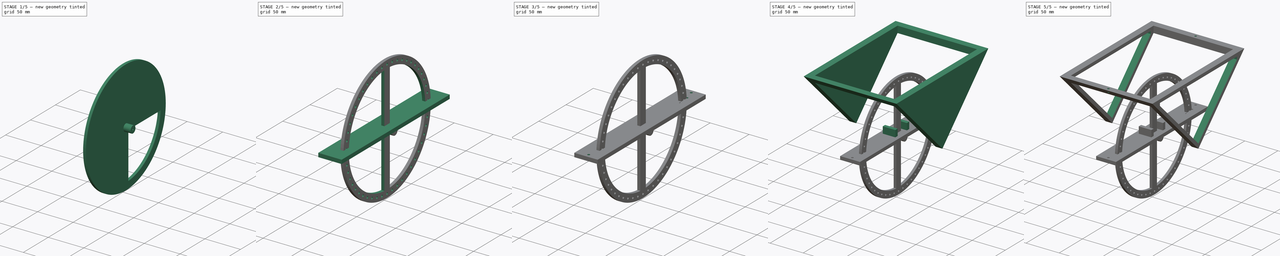
[diagram: build sequence overview — one tinted view per stage of 5, left to right]
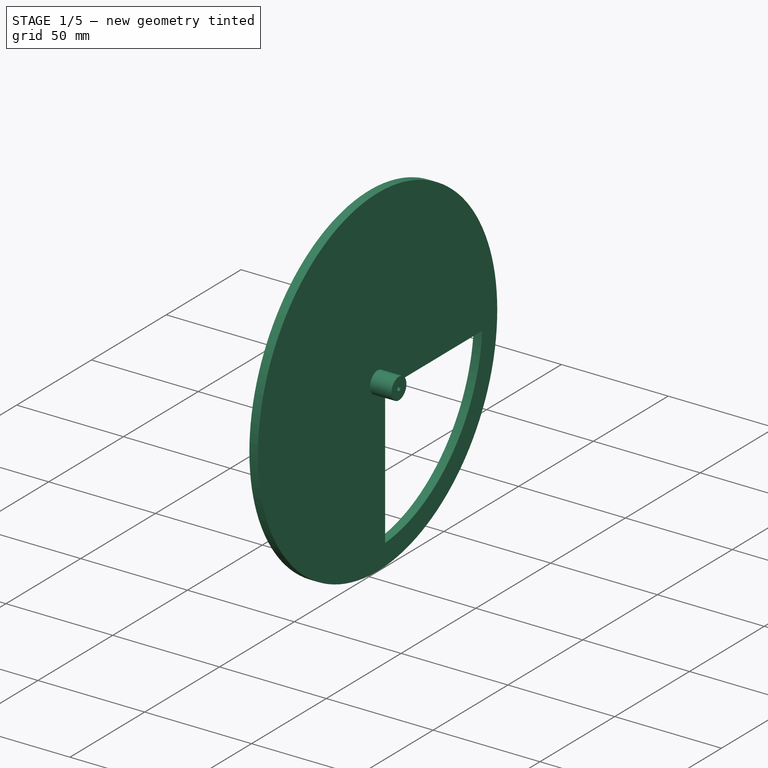
[diagram: stage 1 of 5 — iso view after this stage's code; geometry added in this stage tinted green]
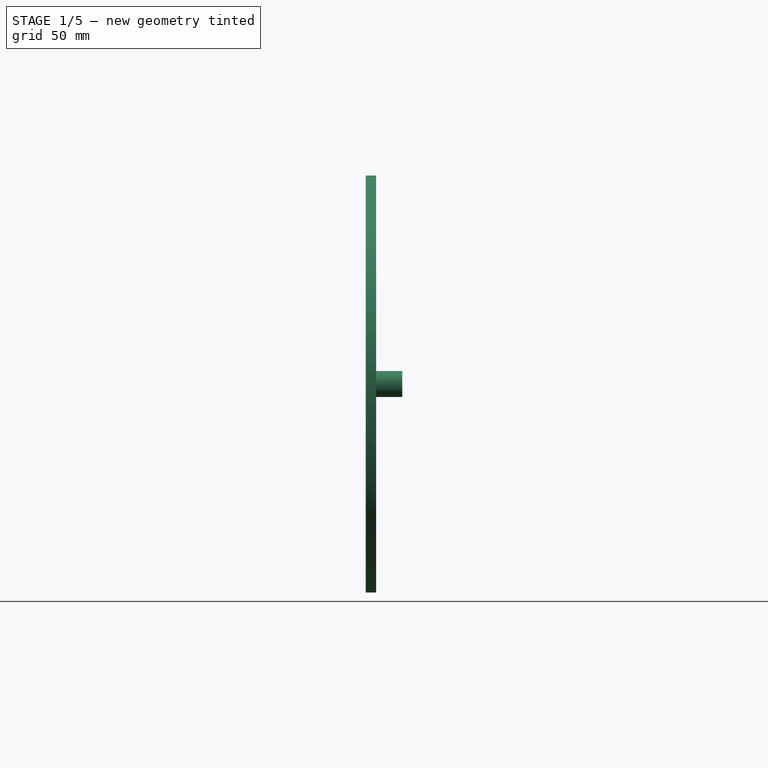
[diagram: stage 1 of 5 — front view after this stage's code; geometry added in this stage tinted green]
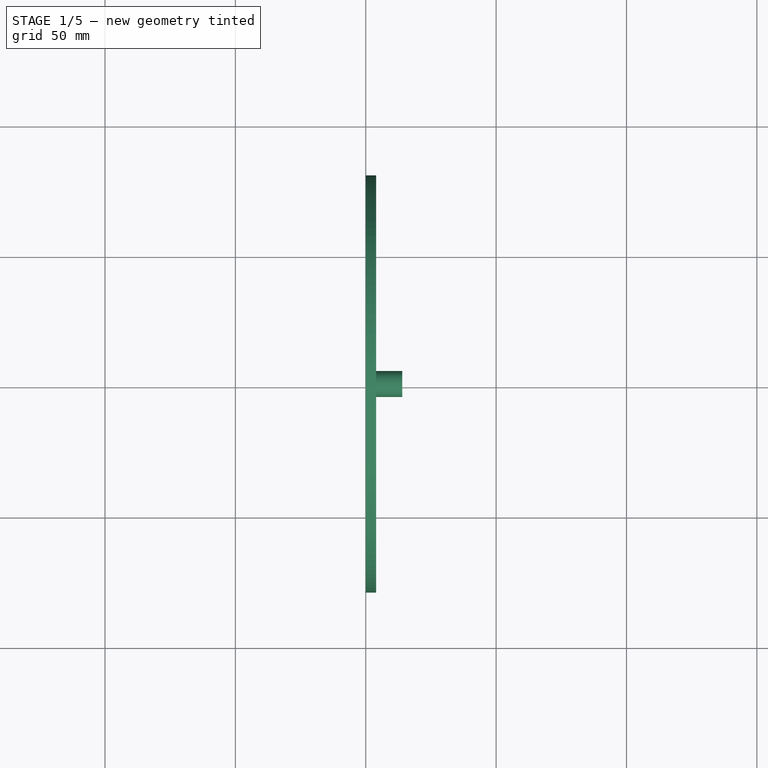
[diagram: stage 1 of 5 — top view after this stage's code; geometry added in this stage tinted green]
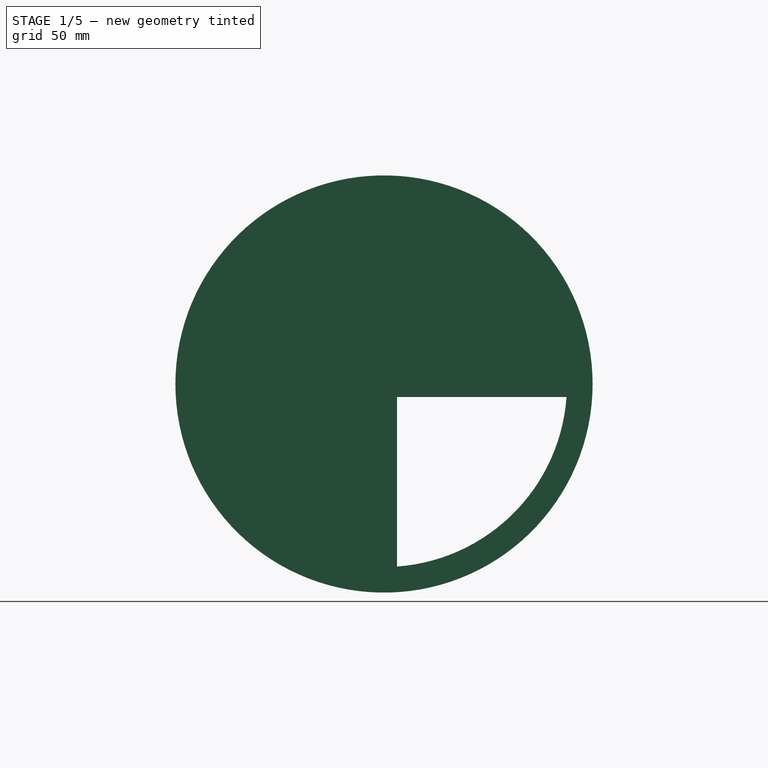
[diagram: stage 1 of 5 — right view after this stage's code; geometry added in this stage tinted green]
FCSTD DOCUMENT  (FreeCAD 1.0R39319 (Git))
Label: inverted_prism
License: All rights reserved
LicenseURL: https://en.wikipedia.org/wiki/All_rights_reserved
objects: Sketcher::SketchObject×13, PartDesign::Pocket×7, PartDesign::Pad×5, PartDesign::Mirrored×3, PartDesign::Body×3, PartDesign::PolarPattern×2, Spreadsheet::Sheet×1
note: 75 computed .brp shape members not serialized (recipe doc carries the construction recipe); baked Part::Feature solids carry a one-line shape summary decoded from their .brp

FEATURE [Sketcher::SketchObject] Sketch
  ArcFitTolerance = 1e-06
  AttachmentSupport = -> [YZ_Plane]
  FullyConstrained = true
  MakeInternals = false
  MapMode = 5
  Placement = pos=(0,0,0) rot=(0.57735,0.57735,0.57735;2.0944rad)
  expr: Constraints[1] = 90
  expr: Constraints[3] = Spreadsheet.B1
  expr: Constraints[4] = Spreadsheet.B1
  sketch-geometry (3):
    g0: LineSegment StartX=-98.9949 StartY=98.9949 StartZ=0 EndX=1.8e-15 EndY=-3.1e-15 EndZ=0
    g1: LineSegment StartX=1.8e-15 StartY=-3.1e-15 StartZ=0 EndX=98.9949 EndY=98.9949 EndZ=0
    g2: LineSegment StartX=-98.9949 StartY=98.9949 StartZ=0 EndX=98.9949 EndY=98.9949 EndZ=0
  constraints (8):
    c: Coincident(g0,g1)
    c: Angle(g1,g0) = 1.5708
    c: Coincident(g0,g-1)
    c: Distance(g1) = 140
    c: Distance(g0) = 140
    c: Coincident(g2,g0)
    c: Coincident(g2,g1)
    c: Horizontal(g2)
FEATURE [Spreadsheet::Sheet] Spreadsheet
  cells = A1='side length; B1==14 cm; A2='thickness; B2==5 mm; A3='length; B3==140 mm; A4='edge; B4==10 mm; A5='base thickness; B5==5 mm
FEATURE [Sketcher::SketchObject] Sketch011
  ArcFitTolerance = 1e-06
  AttachmentSupport = -> [YZ_Plane002]
  FullyConstrained = true
  MakeInternals = false
  MapMode = 5
  Placement = pos=(0,0,0) rot=(0.57735,0.57735,0.57735;2.0944rad)
  sketch-geometry (1):
    g0: Circle CenterX=0 CenterY=0 CenterZ=0 NormalX=0 NormalY=0 NormalZ=1 AngleXU=0 Radius=80
  constraints (2):
    c: Coincident(g0,g-1)
    c: Radius(g0) = 80
FEATURE [PartDesign::Pad] Pad004
  Direction = (1,0,0)
  Length = 4
  Length2 = 10
  Placement = pos=(0,0,0) rot=(1,1,1;2.0944rad)
  Profile = -> Sketch011
  ReferenceAxis = -> Sketch011 [N_Axis]
  Refine = true
  Suppressed = false
  Type = 0
FEATURE [Sketcher::SketchObject] Sketch012
  ArcFitTolerance = 1e-06
  AttachmentSupport = -> [Pad004]
  FullyConstrained = true
  MakeInternals = false
  MapMode = 5
  Placement = pos=(4,-9e-16,4e-16) rot=(0.57735,0.57735,0.57735;2.0944rad)
  sketch-geometry (2):
    g0: Circle CenterX=0 CenterY=0 CenterZ=0 NormalX=0 NormalY=0 NormalZ=1 AngleXU=0 Radius=1.1
    g1: Circle CenterX=0 CenterY=0 CenterZ=0 NormalX=0 NormalY=0 NormalZ=1 AngleXU=0 Radius=5
  constraints (4):
    c: Coincident(g0,g-1)
    c: Coincident(g1,g0)
    c: Radius(g0) = 1.1
    c: Radius(g1) = 5
FEATURE [PartDesign::Pad] Pad005
  BaseFeature = -> Pad004
  Direction = (1,0,0)
  Length = 10
  Length2 = 10
  Placement = pos=(0,0,0) rot=(1,1,1;2.0944rad)
  Profile = -> Sketch012
  ReferenceAxis = -> Sketch012 [N_Axis]
  Refine = true
  Suppressed = false
  Type = 0
FEATURE [PartDesign::Body] Body003  label="bridge"
  AllowCompound = false
  Group = -> [Sketch019,Pad006,Sketch020,Pocket011,Mirrored001,Sketch021,Pocket012,Sketch022,Pad007,Mirrored002]
  Origin = -> Origin003
  Placement = pos=(0,0,99) rot=(0,0,1;0rad)
  Tip = -> Mirrored002
FEATURE [Sketcher::SketchObject] Sketch023
  ArcFitTolerance = 1e-06
  AttachmentSupport = -> [Pad005]
  FullyConstrained = true
  MakeInternals = false
  MapMode = 5
  Placement = pos=(0,0,0) rot=(0.57735,0.57735,-0.57735;4.18879rad)
  sketch-geometry (3):
    g0: ArcOfCircle CenterX=0 CenterY=0 CenterZ=0 NormalX=0 NormalY=0 NormalZ=1 AngleXU=0 Radius=70.1783 StartAngle=0.0713075 EndAngle=1.49949
    g1: LineSegment StartX=70 StartY=5 StartZ=0 EndX=5 EndY=5 EndZ=0
    g2: LineSegment StartX=5 StartY=5 StartZ=0 EndX=5 EndY=70 EndZ=0
  constraints (9):
    c: Coincident(g0,g-1)
    c: Coincident(g0,g1)
    c: Coincident(g1,g2)
    c: Coincident(g2,g0)
    c: Vertical(g2)
    c: Horizontal(g1)
    c: DistanceY(g-1,g0) = 5
    c: DistanceX(g-2,g0) = 5
    c: DistanceY(g2,g2) = 65
FEATURE [PartDesign::Pocket] Pocket013
  BaseFeature = -> Pad005
  Direction = (1,0,0)
  Length = 5
  Length2 = 5
  Placement = pos=(0,0,0) rot=(1,1,1;2.0944rad)
  Profile = -> Sketch023
  ReferenceAxis = -> Sketch023 [N_Axis]
  Refine = true
  Suppressed = false
  Type = 0
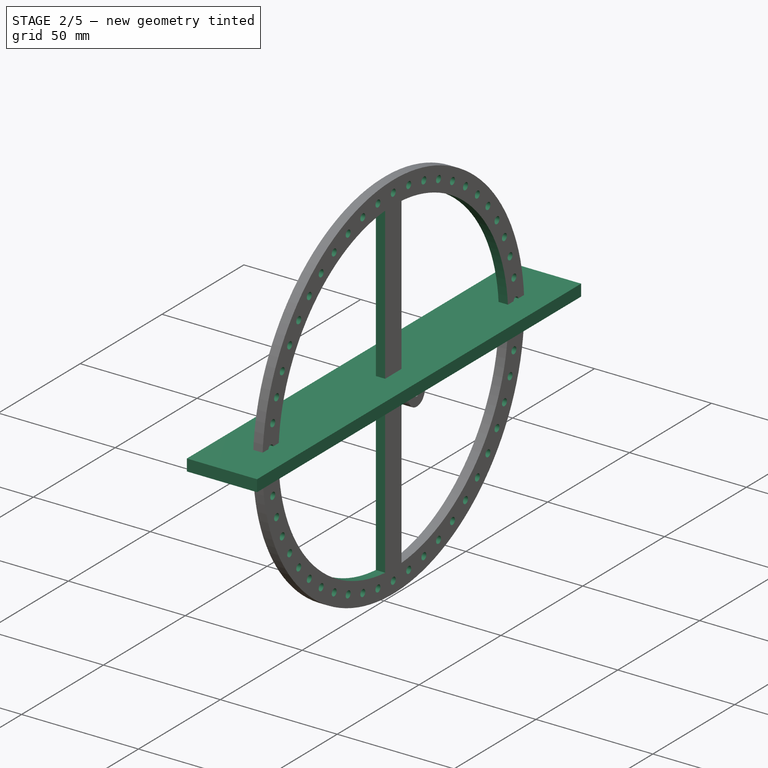
[diagram: stage 2 of 5 — iso view after this stage's code; geometry added in this stage tinted green]
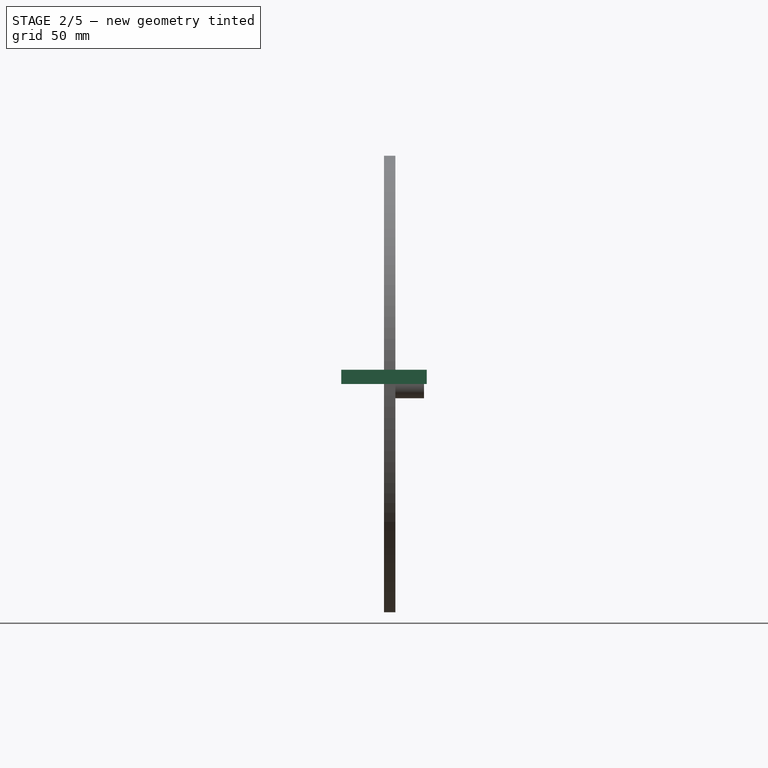
[diagram: stage 2 of 5 — front view after this stage's code; geometry added in this stage tinted green]
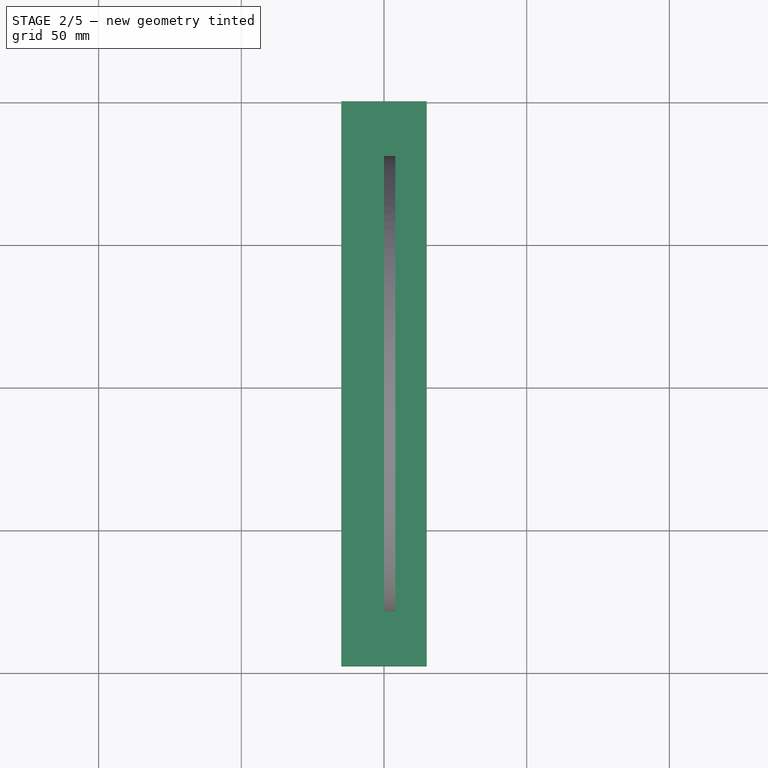
[diagram: stage 2 of 5 — top view after this stage's code; geometry added in this stage tinted green]
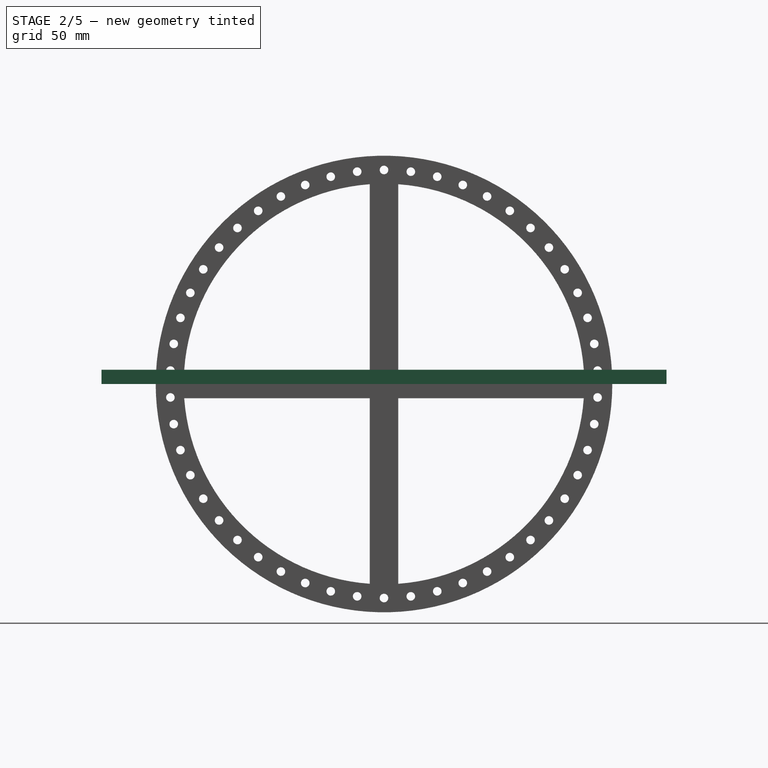
[diagram: stage 2 of 5 — right view after this stage's code; geometry added in this stage tinted green]
FEATURE [PartDesign::Body] Body  label="prism"
  AllowCompound = false
  Group = -> [Sketch,Pad,Sketch015,Pocket,Sketch016,Pocket009,Sketch017,Sketch018,Pocket010,Mirrored]
  Origin = -> Origin
  Tip = -> Mirrored
FEATURE [Sketcher::SketchObject] Sketch019
  ArcFitTolerance = 1e-06
  AttachmentSupport = -> [XY_Plane003]
  FullyConstrained = true
  MakeInternals = false
  MapMode = 5
  expr: Constraints[10] = 198 mm / 2
  sketch-geometry (4):
    g0: LineSegment StartX=-15 StartY=99 StartZ=0 EndX=-15 EndY=-99 EndZ=0
    g1: LineSegment StartX=-15 StartY=-99 StartZ=0 EndX=15 EndY=-99 EndZ=0
    g2: LineSegment StartX=15 StartY=-99 StartZ=0 EndX=15 EndY=99 EndZ=0
    g3: LineSegment StartX=15 StartY=99 StartZ=0 EndX=-15 EndY=99 EndZ=0
  constraints (12):
    c: Coincident(g0,g1)
    c: Coincident(g1,g2)
    c: Coincident(g2,g3)
    c: Coincident(g3,g0)
    c: Vertical(g0)
    c: Vertical(g2)
    c: Horizontal(g1)
    c: Horizontal(g3)
    c: DistanceY(g2,g2) = 198
    c: DistanceX(g3,g3) = 30
    c: DistanceY(g-1,g2) = 99
    c: DistanceX(g-1,g2) = 15
FEATURE [PartDesign::Pad] Pad006
  Direction = (0,0,1)
  Length = 5
  Length2 = 10
  Profile = -> Sketch019
  ReferenceAxis = -> Sketch019 [N_Axis]
  Refine = true
  Suppressed = false
  Type = 0
FEATURE [PartDesign::PolarPattern] PolarPattern
  Angle = 360
  Axis = -> Sketch023 [N_Axis]
  BaseFeature = -> Pocket013
  Mode = 0
  Occurrences = 4
  Offset = 120
  Originals = -> [Pocket013]
  Placement = pos=(0,0,0) rot=(1,1,1;2.0944rad)
  Refine = true
  Suppressed = false
  TransformMode = 0
FEATURE [Sketcher::SketchObject] Sketch024
  ArcFitTolerance = 1e-06
  AttachmentSupport = -> [PolarPattern]
  ExternalGeometry = -> [PolarPattern]
  FullyConstrained = true
  MakeInternals = false
  MapMode = 5
  Placement = pos=(0,0,0) rot=(0.57735,0.57735,-0.57735;4.18879rad)
  sketch-geometry (1):
    g0: Circle CenterX=0 CenterY=75 CenterZ=0 NormalX=0 NormalY=0 NormalZ=1 AngleXU=0 Radius=1.5
  constraints (3):
    c: PointOnObject(g0,g-2)
    c: Radius(g0) = 1.5
    c: Distance(g0,g-3) = 5
FEATURE [PartDesign::Pocket] Pocket014
  BaseFeature = -> PolarPattern
  Direction = (1,0,0)
  Length = 5
  Length2 = 5
  Placement = pos=(0,0,0) rot=(1,1,1;2.0944rad)
  Profile = -> Sketch024
  ReferenceAxis = -> Sketch024 [N_Axis]
  Refine = true
  Suppressed = false
  Type = 0
FEATURE [PartDesign::PolarPattern] PolarPattern001
  Angle = 360
  Axis = -> Sketch024 [N_Axis]
  BaseFeature = -> Pocket014
  Mode = 0
  Occurrences = 50
  Offset = 120
  Originals = -> [Pocket014]
  Placement = pos=(0,0,0) rot=(1,1,1;2.0944rad)
  Refine = true
  Suppressed = false
  TransformMode = 0
FEATURE [PartDesign::Body] Body002  label="wheel"
  AllowCompound = false
  Group = -> [Sketch011,Pad004,Sketch012,Pad005,Sketch023,Pocket013,PolarPattern,Sketch024,Pocket014,PolarPattern001]
  Origin = -> Origin002
  Placement = pos=(34.5541,-0.187504,109) rot=(0,0,-1;3.14159rad)
  Tip = -> PolarPattern001
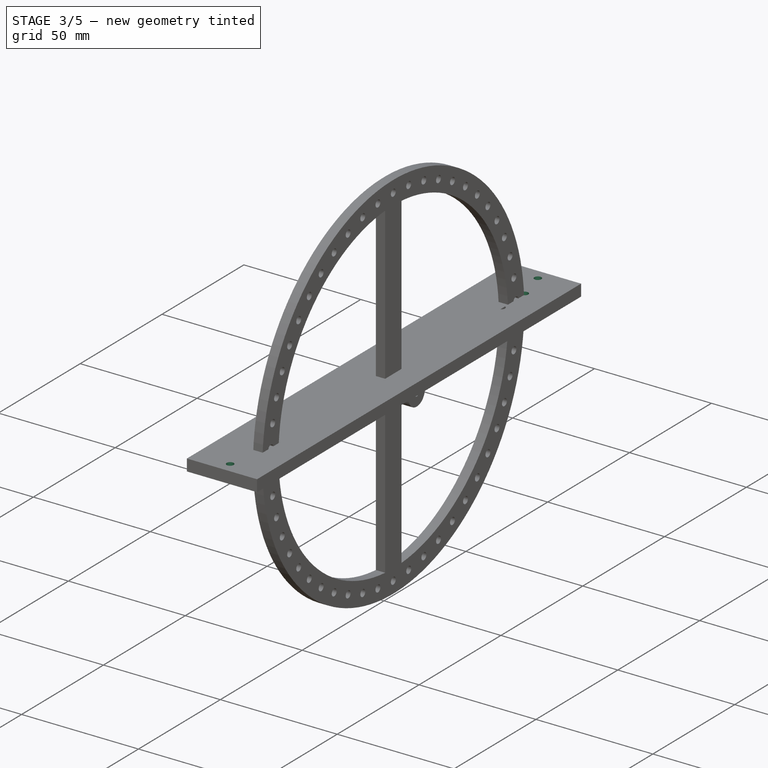
[diagram: stage 3 of 5 — iso view after this stage's code; geometry added in this stage tinted green]
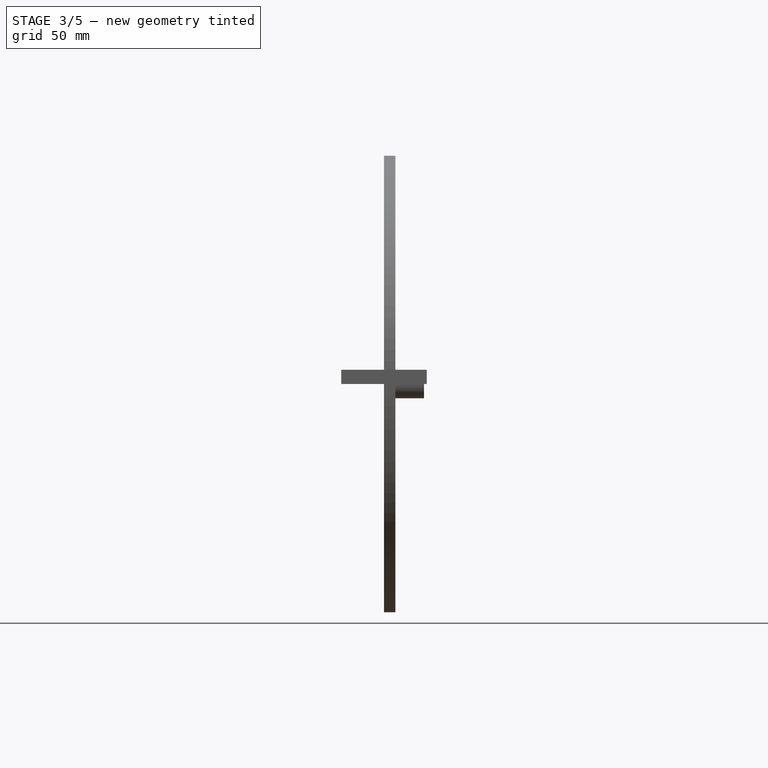
[diagram: stage 3 of 5 — front view after this stage's code; geometry added in this stage tinted green]
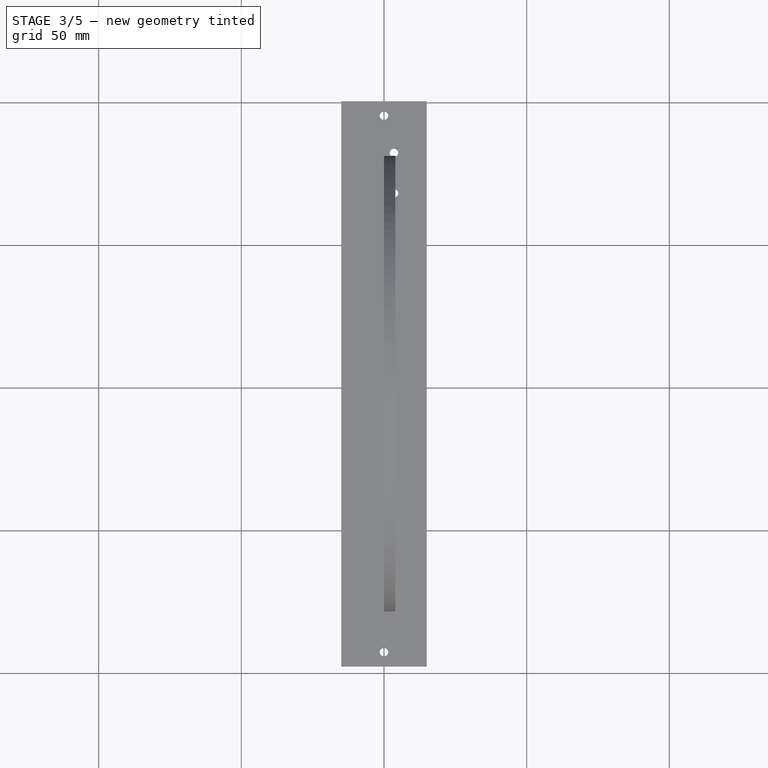
[diagram: stage 3 of 5 — top view after this stage's code; geometry added in this stage tinted green]
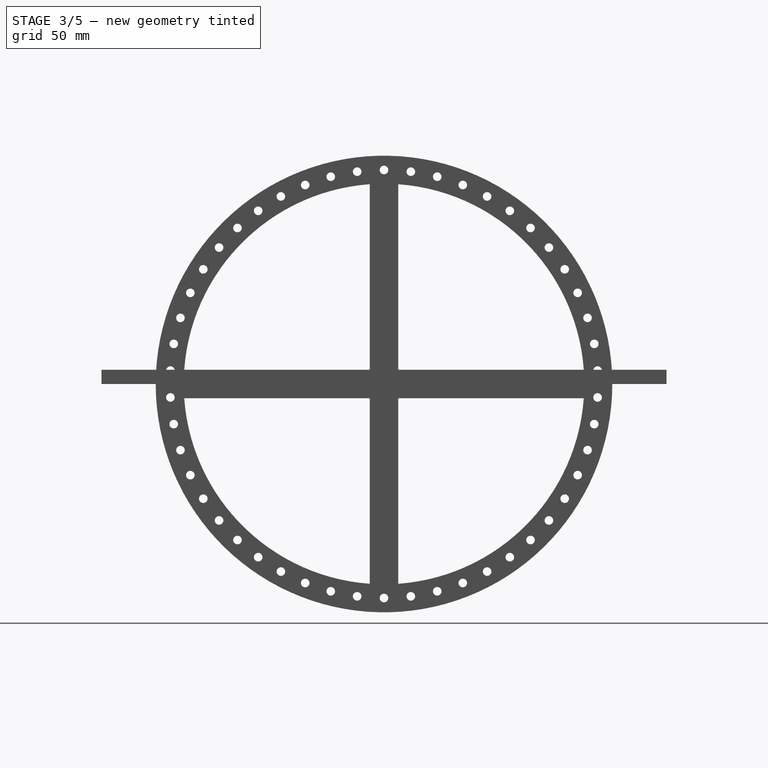
[diagram: stage 3 of 5 — right view after this stage's code; geometry added in this stage tinted green]
FEATURE [Sketcher::SketchObject] Sketch020
  ArcFitTolerance = 1e-06
  AttachmentSupport = -> [Pad006]
  ExternalGeometry = -> [Pad006]
  FullyConstrained = true
  MakeInternals = false
  MapMode = 5
  Placement = pos=(0,0,5) rot=(0,0,1;0rad)
  sketch-geometry (1):
    g0: Circle CenterX=0 CenterY=94 CenterZ=0 NormalX=0 NormalY=0 NormalZ=1 AngleXU=0 Radius=1.5
  constraints (3):
    c: PointOnObject(g0,g-2)
    c: Radius(g0) = 1.5
    c: Distance(g0,g-3) = 5
FEATURE [PartDesign::Pocket] Pocket011
  BaseFeature = -> Pad006
  Direction = (0,0,-1)
  Length = 5
  Length2 = 5
  Profile = -> Sketch020
  ReferenceAxis = -> Sketch020 [N_Axis]
  Refine = true
  Suppressed = false
  Type = 1
FEATURE [PartDesign::Mirrored] Mirrored001
  BaseFeature = -> Pocket011
  MirrorPlane = -> XZ_Plane003
  Originals = -> [Pocket011]
  Refine = true
  Suppressed = false
  TransformMode = 0
FEATURE [Sketcher::SketchObject] Sketch021
  ArcFitTolerance = 1e-06
  AttachmentSupport = -> [Mirrored001]
  ExternalGeometry = -> [Mirrored001]
  FullyConstrained = true
  MakeInternals = false
  MapMode = 5
  Placement = pos=(0,0,5) rot=(0,0,1;0rad)
  sketch-geometry (2):
    g0: Circle CenterX=3.5 CenterY=81 CenterZ=0 NormalX=0 NormalY=0 NormalZ=1 AngleXU=0 Radius=1.5
    g1: Circle CenterX=3.5 CenterY=66.8 CenterZ=0 NormalX=0 NormalY=0 NormalZ=1 AngleXU=0 Radius=1.5
  constraints (6):
    c: Radius(g0) = 1.5
    c: Distance(g0,g-3) = 11.5
    c: Distance(g0,g-4) = 18
    c: Radius(g1) = 1.5
    c: DistanceX(g1,g0) = 0
    c: DistanceY(g1,g0) = 14.2
FEATURE [PartDesign::Pocket] Pocket012
  BaseFeature = -> Mirrored001
  Direction = (0,0,-1)
  Length = 7
  Length2 = 5
  Profile = -> Sketch021
  ReferenceAxis = -> Sketch021 [N_Axis]
  Refine = true
  Suppressed = false
  Type = 1
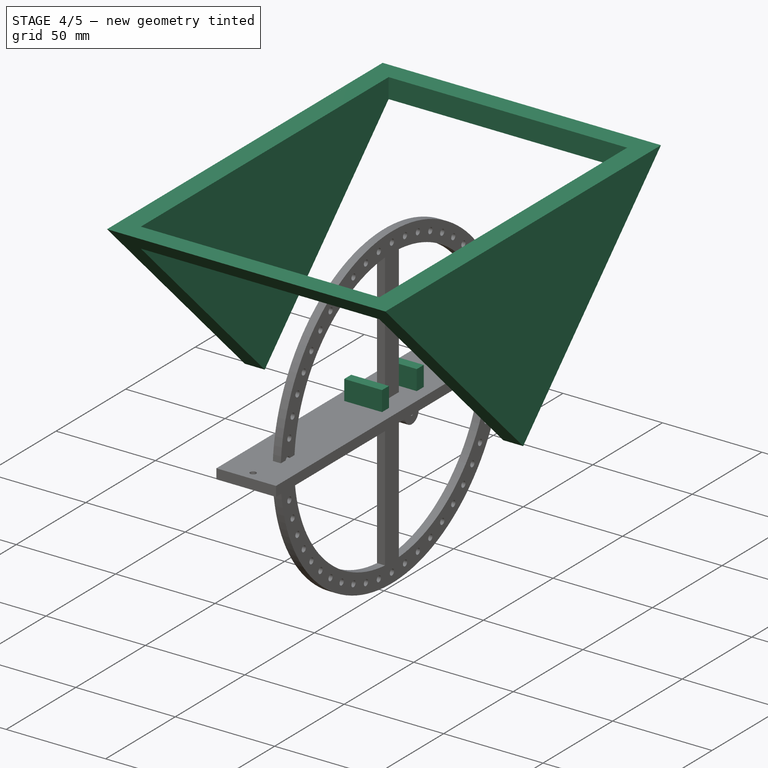
[diagram: stage 4 of 5 — iso view after this stage's code; geometry added in this stage tinted green]
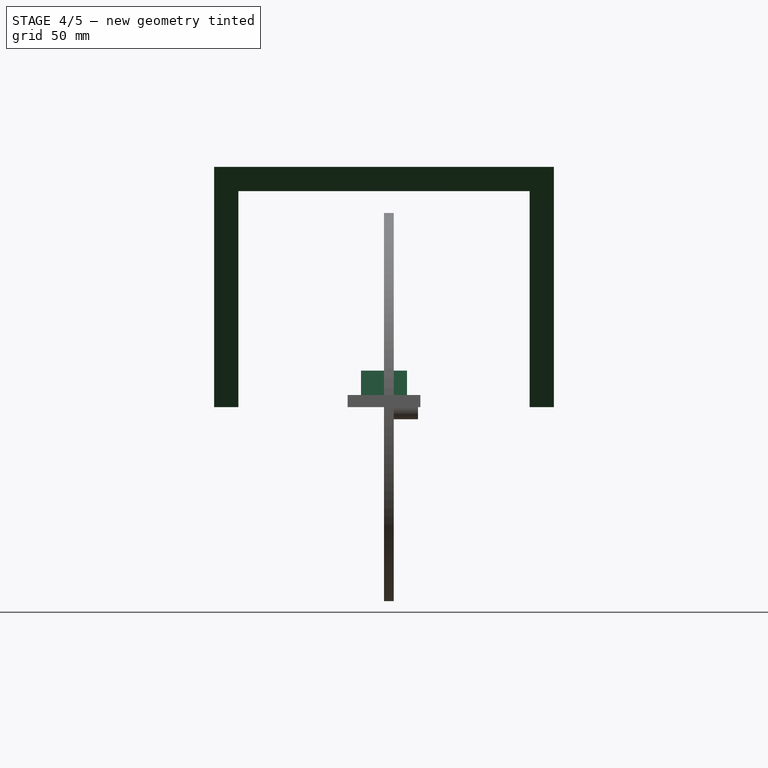
[diagram: stage 4 of 5 — front view after this stage's code; geometry added in this stage tinted green]
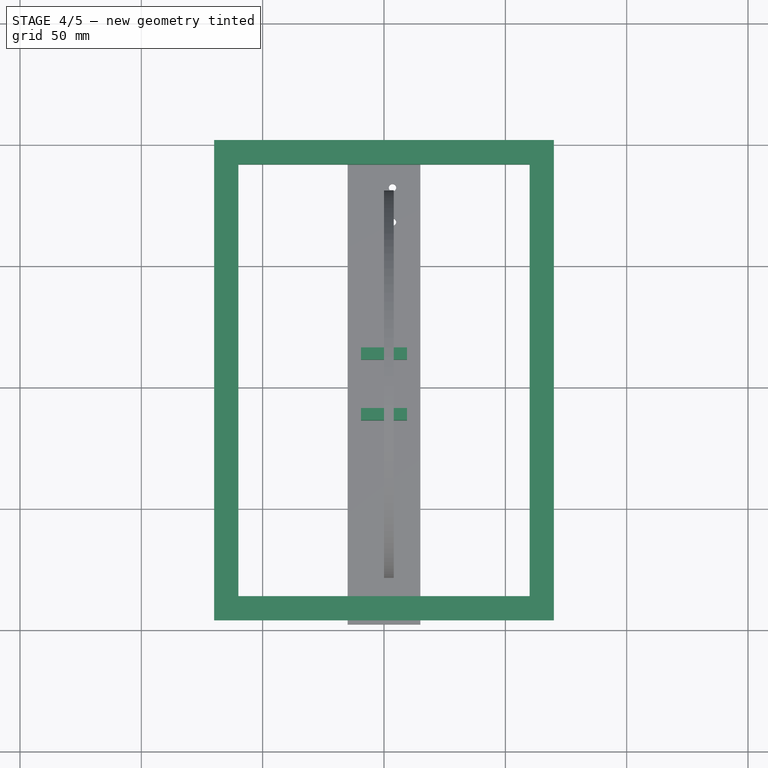
[diagram: stage 4 of 5 — top view after this stage's code; geometry added in this stage tinted green]
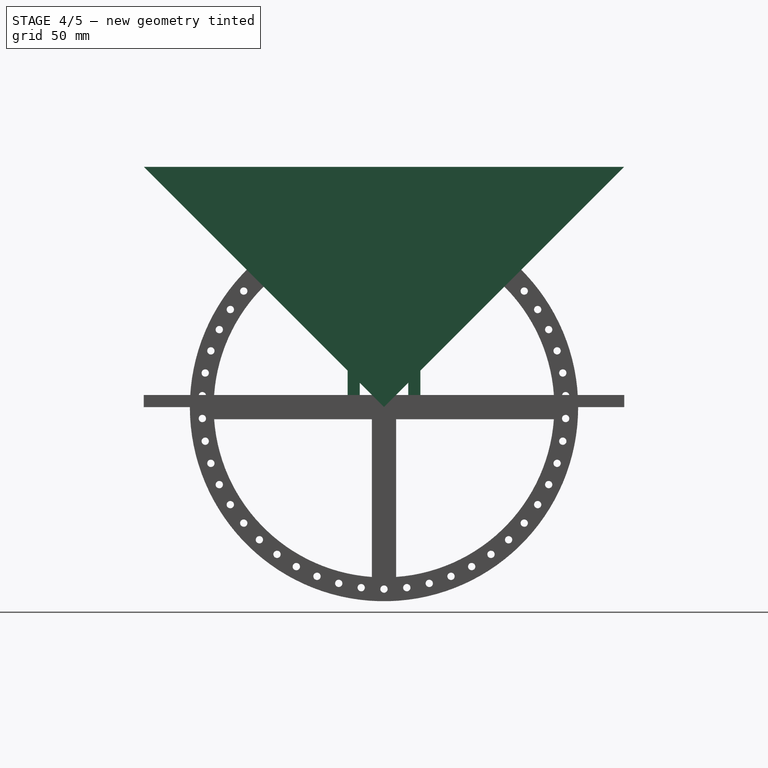
[diagram: stage 4 of 5 — right view after this stage's code; geometry added in this stage tinted green]
FEATURE [PartDesign::Pad] Pad
  Direction = (1,0,0)
  Length = 140
  Length2 = 10
  Midplane = true
  Placement = pos=(0,0,0) rot=(1,1,1;2.0944rad)
  Profile = -> Sketch
  ReferenceAxis = -> Sketch [N_Axis]
  Refine = true
  Suppressed = false
  Type = 0
FEATURE [Sketcher::SketchObject] Sketch015
  ArcFitTolerance = 1e-06
  AttachmentSupport = -> [Pad]
  ExternalGeometry = -> [Pad]
  FullyConstrained = true
  MakeInternals = false
  MapMode = 5
  Placement = pos=(-1.1e-14,3.3e-14,98.9949) rot=(0,0,-1;1.5708rad)
  sketch-geometry (4):
    g0: LineSegment StartX=-88.9949 StartY=60 StartZ=0 EndX=-88.9949 EndY=-60 EndZ=0
    g1: LineSegment StartX=-88.9949 StartY=-60 StartZ=0 EndX=88.9949 EndY=-60 EndZ=0
    g2: LineSegment StartX=88.9949 StartY=-60 StartZ=0 EndX=88.9949 EndY=60 EndZ=0
    g3: LineSegment StartX=88.9949 StartY=60 StartZ=0 EndX=-88.9949 EndY=60 EndZ=0
  constraints (12):
    c: Coincident(g0,g1)
    c: Coincident(g1,g2)
    c: Coincident(g2,g3)
    c: Coincident(g3,g0)
    c: Vertical(g0)
    c: Vertical(g2)
    c: Horizontal(g1)
    c: Horizontal(g3)
    c: DistanceY(g0,g-4) = 10
    c: DistanceX(g-4,g0) = 10
    c: DistanceX(g2,g-6) = 10
    c: DistanceY(g-5,g0) = 10
FEATURE [PartDesign::Pocket] Pocket
  BaseFeature = -> Pad
  Direction = (0,0,-1)
  Length = 5
  Length2 = 5
  Placement = pos=(0,0,0) rot=(1,1,1;2.0944rad)
  Profile = -> Sketch015
  ReferenceAxis = -> Sketch015 [N_Axis]
  Refine = true
  Suppressed = false
  Type = 1
FEATURE [Sketcher::SketchObject] Sketch022
  ArcFitTolerance = 1e-06
  AttachmentSupport = -> [Pocket012]
  FullyConstrained = true
  MakeInternals = false
  MapMode = 5
  Placement = pos=(0,0,5) rot=(0,0,1;0rad)
  expr: Constraints[11] = 19 mm / 2
  sketch-geometry (4):
    g0: LineSegment StartX=-9.5 StartY=15 StartZ=0 EndX=-9.5 EndY=10 EndZ=0
    g1: LineSegment StartX=-9.5 StartY=10 StartZ=0 EndX=9.5 EndY=10 EndZ=0
    g2: LineSegment StartX=9.5 StartY=10 StartZ=0 EndX=9.5 EndY=15 EndZ=0
    g3: LineSegment StartX=9.5 StartY=15 StartZ=0 EndX=-9.5 EndY=15 EndZ=0
  constraints (12):
    c: Coincident(g0,g1)
    c: Coincident(g1,g2)
    c: Coincident(g2,g3)
    c: Coincident(g3,g0)
    c: Vertical(g0)
    c: Vertical(g2)
    c: Horizontal(g1)
    c: Horizontal(g3)
    c: DistanceY(g0,g0) = 5
    c: DistanceX(g1,g1) = 19
    c: Distance(g-1,g1) = 10
    c: DistanceX(g-1,g1) = 9.5
FEATURE [PartDesign::Pad] Pad007
  BaseFeature = -> Pocket012
  Direction = (0,0,1)
  Length = 10
  Length2 = 10
  Profile = -> Sketch022
  ReferenceAxis = -> Sketch022 [N_Axis]
  Refine = true
  Suppressed = false
  Type = 0
FEATURE [PartDesign::Mirrored] Mirrored002
  BaseFeature = -> Pad007
  MirrorPlane = -> XZ_Plane003
  Originals = -> [Pad007]
  Refine = true
  Suppressed = false
  TransformMode = 0
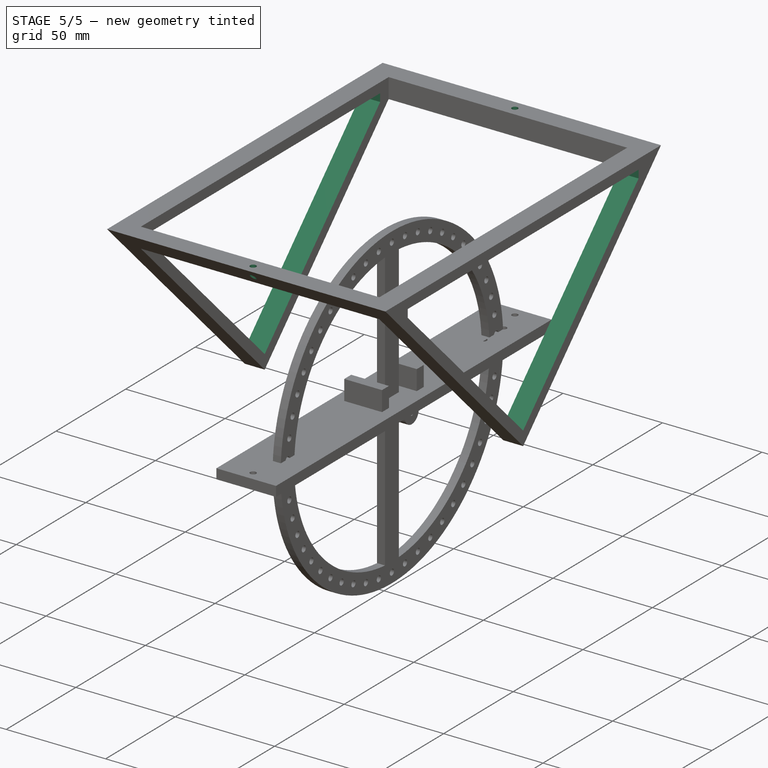
[diagram: stage 5 of 5 — iso view after this stage's code; geometry added in this stage tinted green]
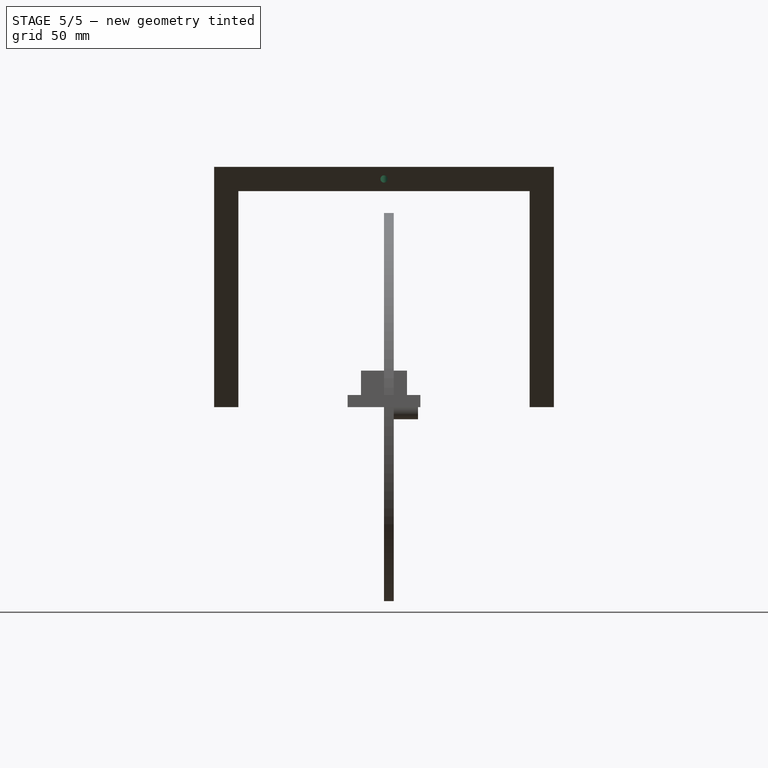
[diagram: stage 5 of 5 — front view after this stage's code; geometry added in this stage tinted green]
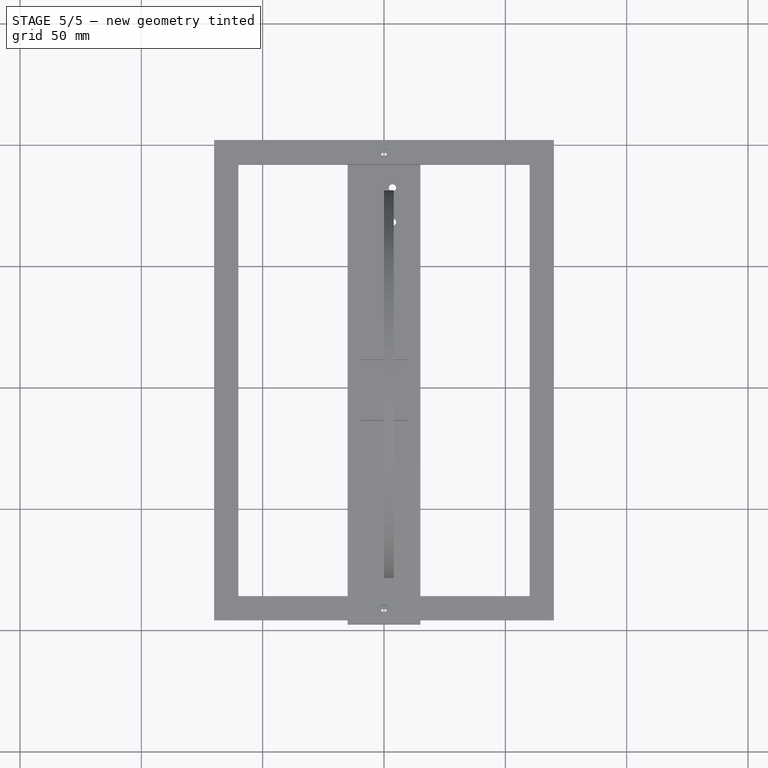
[diagram: stage 5 of 5 — top view after this stage's code; geometry added in this stage tinted green]
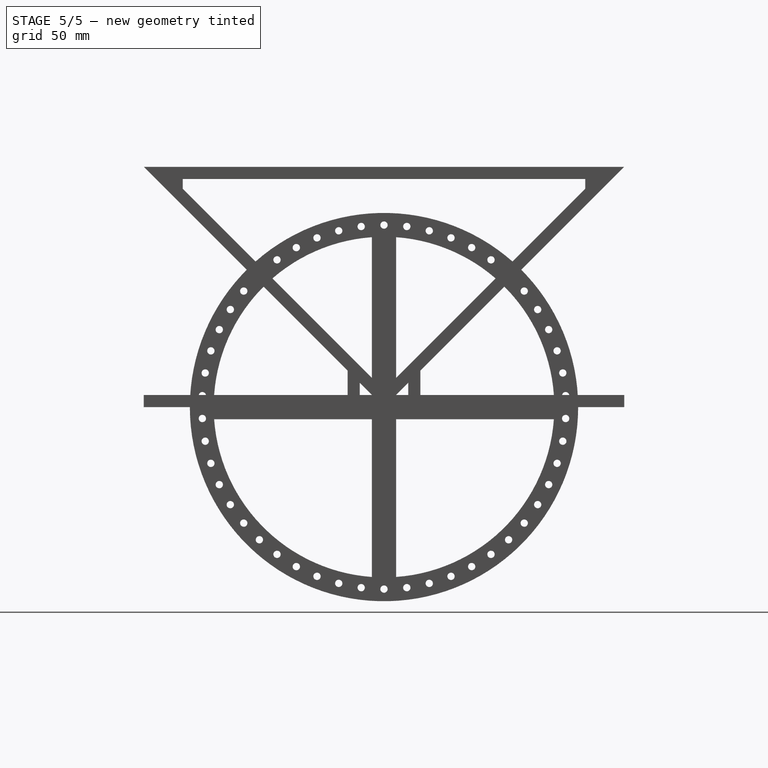
[diagram: stage 5 of 5 — right view after this stage's code; geometry added in this stage tinted green]
FEATURE [Sketcher::SketchObject] Sketch016
  ArcFitTolerance = 1e-06
  AttachmentSupport = -> [Pocket]
  ExternalGeometry = -> [Pocket]
  FullyConstrained = true
  MakeInternals = false
  MapMode = 5
  Placement = pos=(70,-3.11e-14,1.55e-14) rot=(0.57735,0.57735,0.57735;2.0944rad)
  sketch-geometry (5):
    g0: LineSegment StartX=-82.9239 StartY=93.9949 StartZ=0 EndX=-82.9239 EndY=89.9949 EndZ=0
    g1: LineSegment StartX=-82.9239 StartY=89.9949 StartZ=0 EndX=4.6e-15 EndY=7.07107 EndZ=0
    g2: LineSegment StartX=4.6e-15 StartY=7.07107 StartZ=0 EndX=82.9239 EndY=89.9949 EndZ=0
    g3: LineSegment StartX=82.9239 StartY=89.9949 StartZ=0 EndX=82.9239 EndY=93.9949 EndZ=0
    g4: LineSegment StartX=82.9239 StartY=93.9949 StartZ=0 EndX=-82.9239 EndY=93.9949 EndZ=0
  constraints (15):
    c: Vertical(g0)
    c: Coincident(g0,g1)
    c: PointOnObject(g1,g-2)
    c: Coincident(g1,g2)
    c: Coincident(g2,g3)
    c: Coincident(g3,g4)
    c: Coincident(g4,g0)
    c: Horizontal(g4)
    c: Distance(g1,g-4) = 5
    c: Distance(g0,g-4) = 5
    c: Distance(g0,g-3) = 5
    c: Vertical(g3)
    c: Distance(g2,g-5) = 5
    c: DistanceY(g0,g0) = 4
    c: DistanceY(g3,g3) = 4
FEATURE [PartDesign::Pocket] Pocket009
  BaseFeature = -> Pocket
  Direction = (-1,0,0)
  Length = 5
  Length2 = 5
  Placement = pos=(0,0,0) rot=(1,1,1;2.0944rad)
  Profile = -> Sketch016
  ReferenceAxis = -> Sketch016 [N_Axis]
  Refine = true
  Suppressed = false
  Type = 1
FEATURE [Sketcher::SketchObject] Sketch017
  ArcFitTolerance = 1e-06
  AttachmentSupport = -> [Pocket009]
  FullyConstrained = true
  MakeInternals = false
  MapMode = 5
  Placement = pos=(-7.69e-14,5.5e-14,98.9949) rot=(0,0,-1;1.5708rad)
FEATURE [Sketcher::SketchObject] Sketch018
  ArcFitTolerance = 1e-06
  AttachmentSupport = -> [Pocket009]
  ExternalGeometry = -> [Pocket009]
  FullyConstrained = true
  MakeInternals = false
  MapMode = 5
  Placement = pos=(-7.69e-14,5.5e-14,98.9949) rot=(0,0,-1;1.5708rad)
  sketch-geometry (1):
    g0: Circle CenterX=-93.9949 CenterY=0 CenterZ=0 NormalX=0 NormalY=0 NormalZ=1 AngleXU=0 Radius=1.5
  constraints (3):
    c: PointOnObject(g0,g-1)
    c: Radius(g0) = 1.5
    c: Distance(g0,g-5) = 5
FEATURE [PartDesign::Pocket] Pocket010
  BaseFeature = -> Pocket009
  Direction = (0,0,-1)
  Length = 7
  Length2 = 5
  Placement = pos=(0,0,0) rot=(1,1,1;2.0944rad)
  Profile = -> Sketch018
  ReferenceAxis = -> Sketch018 [N_Axis]
  Refine = true
  Suppressed = false
  Type = 0
FEATURE [PartDesign::Mirrored] Mirrored
  BaseFeature = -> Pocket010
  MirrorPlane = -> XZ_Plane
  Originals = -> [Pocket010]
  Placement = pos=(0,0,0) rot=(1,1,1;2.0944rad)
  Refine = true
  Suppressed = false
  TransformMode = 0
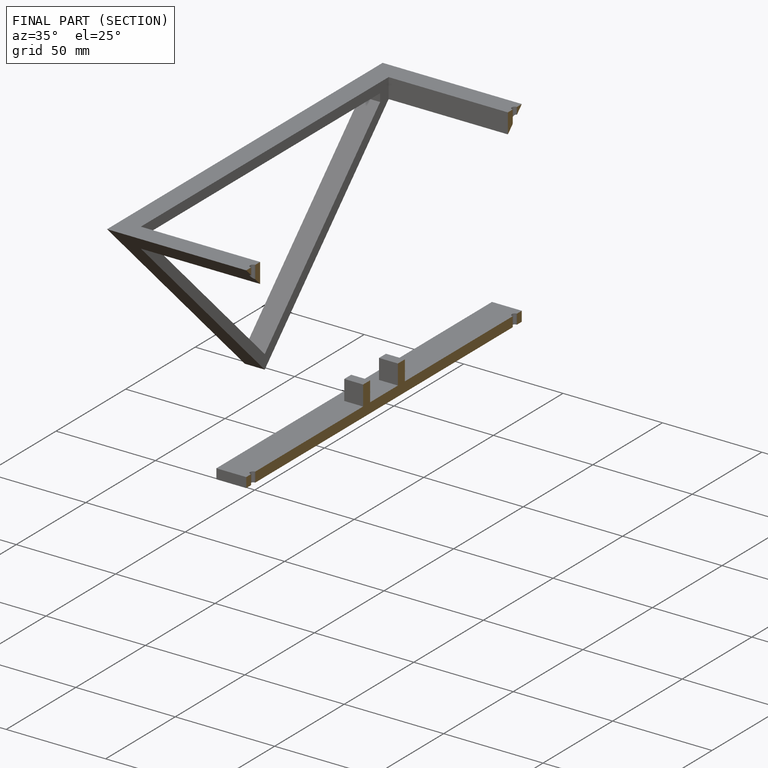
[diagram: finished part — half-section view (interior)]
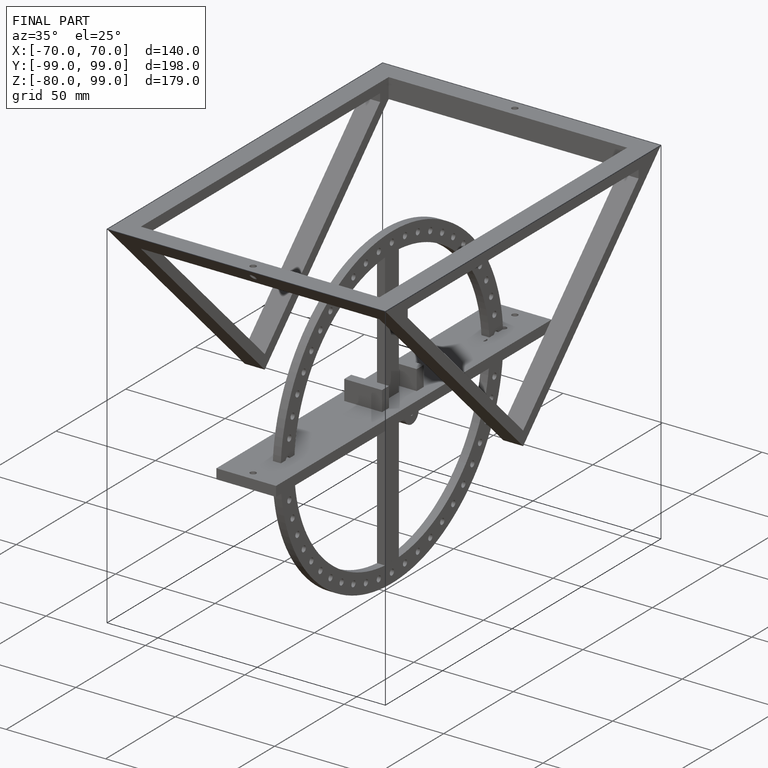
[diagram: finished part — iso view with bounding-box wireframe]
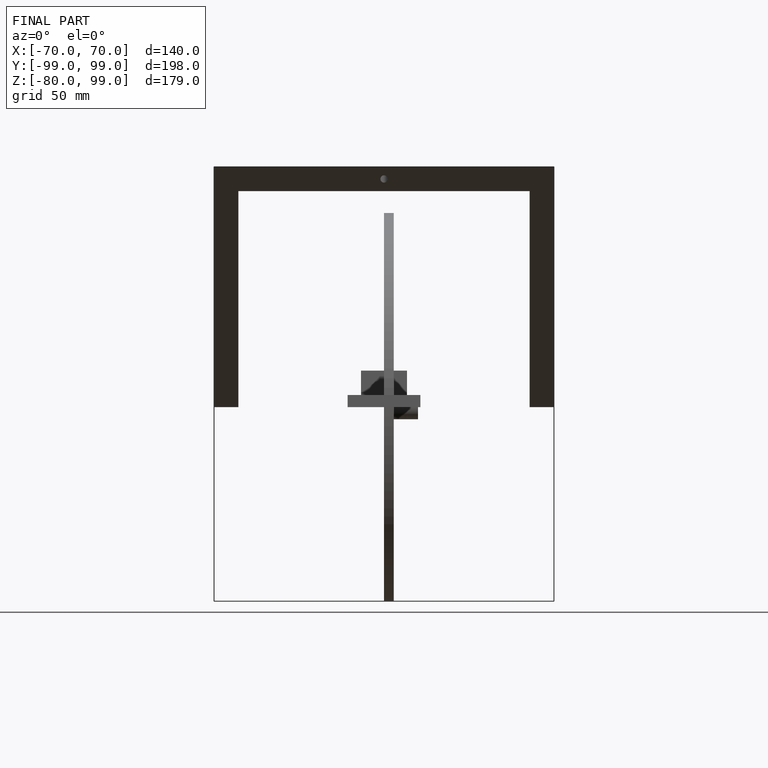
[diagram: finished part — front view with bounding-box wireframe]
